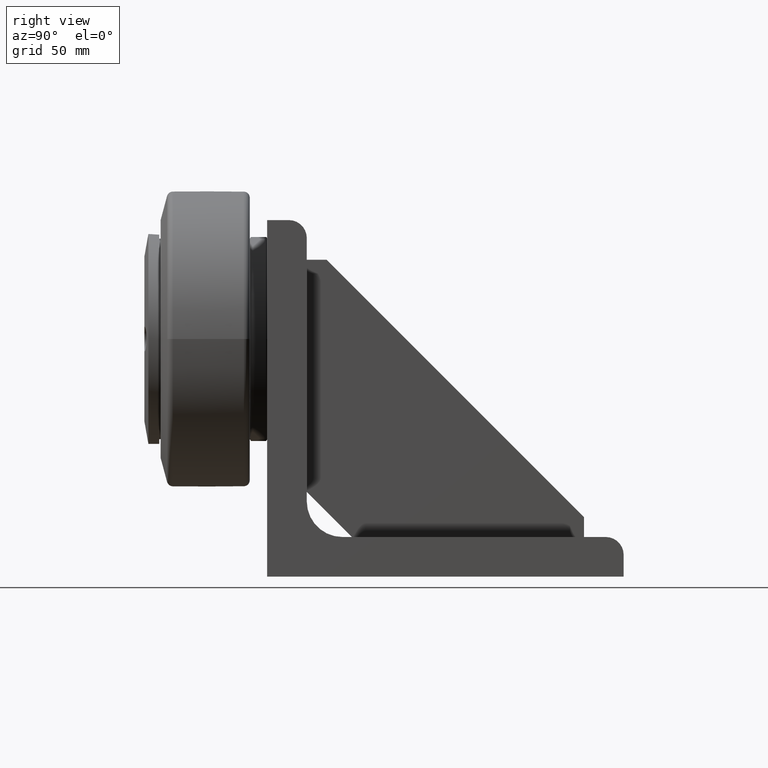
[diagram: clean part render]
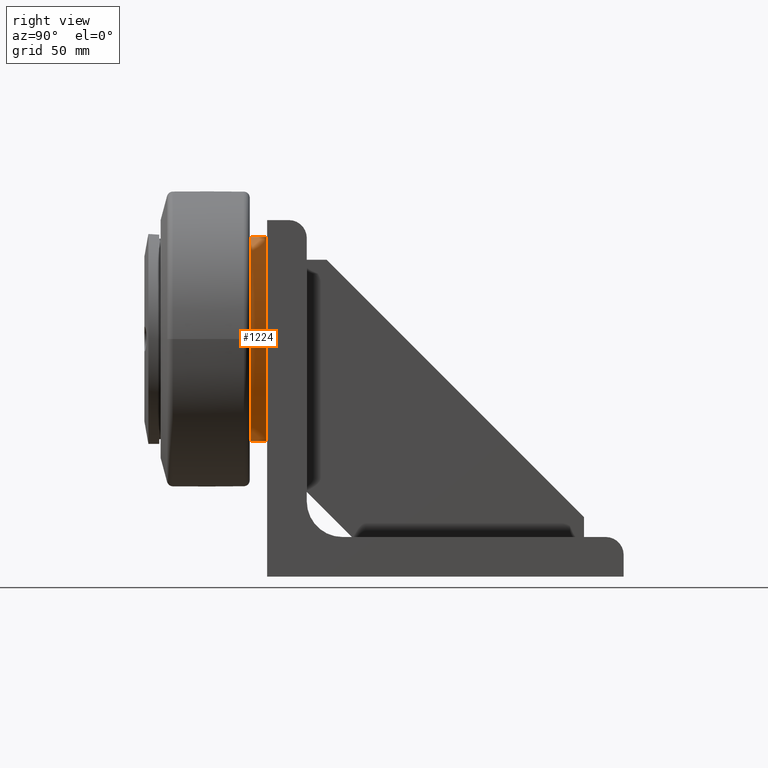
[diagram: same view with one face highlighted and labeled with its STEP entity id]
A machine part, right view. The second image highlights one B-rep face of the part: STEP entity #1224.
In plain terms, the highlighted cylindrical surface (bore or boss wall) has radius 51.5 mm, axis along (0, -1, -0).
Its self-contained STEP definition (entity closure, byte-faithful):
#34=CYLINDRICAL_SURFACE('',#1349,51.5);
#101=CIRCLE('',#1347,51.5);
#102=CIRCLE('',#1348,51.5);
#103=CIRCLE('',#1350,51.5);
#104=CIRCLE('',#1351,51.5);
#152=FACE_OUTER_BOUND('',#221,.T.);
#221=EDGE_LOOP('',(#940,#941,#942,#943,#944,#945));
#304=LINE('',#2001,#415);
#415=VECTOR('',#1576,51.5);
#547=VERTEX_POINT('',#1994);
#548=VERTEX_POINT('',#1996);
#549=VERTEX_POINT('',#2000);
#550=VERTEX_POINT('',#2002);
#692=EDGE_CURVE('',#547,#548,#101,.T.);
#693=EDGE_CURVE('',#548,#547,#102,.T.);
#694=EDGE_CURVE('',#548,#549,#304,.T.);
#695=EDGE_CURVE('',#550,#549,#103,.T.);
#696=EDGE_CURVE('',#549,#550,#104,.T.);
#940=ORIENTED_EDGE('',*,*,#692,.F.);
#941=ORIENTED_EDGE('',*,*,#693,.F.);
#942=ORIENTED_EDGE('',*,*,#694,.T.);
#943=ORIENTED_EDGE('',*,*,#695,.F.);
#944=ORIENTED_EDGE('',*,*,#696,.F.);
#945=ORIENTED_EDGE('',*,*,#694,.F.);
#1224=ADVANCED_FACE('',(#152),#34,.T.);
#1347=AXIS2_PLACEMENT_3D('',#1997,#1570,#1571);
#1348=AXIS2_PLACEMENT_3D('',#1998,#1572,#1573);
#1349=AXIS2_PLACEMENT_3D('',#1999,#1574,#1575);
#1350=AXIS2_PLACEMENT_3D('',#2003,#1577,#1578);
#1351=AXIS2_PLACEMENT_3D('',#2004,#1579,#1580);
#1570=DIRECTION('center_axis',(0.,-1.,-1.83495194347769E-16));
#1571=DIRECTION('ref_axis',(-1.,1.19539491211322E-16,1.83495194347769E-16));
#1572=DIRECTION('center_axis',(0.,-1.,-1.83495194347769E-16));
#1573=DIRECTION('ref_axis',(-1.,1.19539491211322E-16,1.83495194347769E-16));
#1574=DIRECTION('center_axis',(0.,-1.,-1.83495194347769E-16));
#1575=DIRECTION('ref_axis',(1.,-1.19539491211322E-16,-1.83495194347769E-16));
#1576=DIRECTION('',(0.,1.,1.83495194347769E-16));
#1577=DIRECTION('center_axis',(0.,1.,1.83495194347769E-16));
#1578=DIRECTION('ref_axis',(-1.,1.19539491211322E-16,1.83495194347769E-16));
#1579=DIRECTION('center_axis',(0.,1.,1.83495194347769E-16));
#1580=DIRECTION('ref_axis',(-1.,1.19539491211322E-16,1.83495194347769E-16));
#1994=CARTESIAN_POINT('',(151.5,-8.10000000000002,120.));
#1996=CARTESIAN_POINT('',(48.5,-8.10000000000001,120.));
#1997=CARTESIAN_POINT('Origin',(100.,-8.10000000000001,120.));
#1998=CARTESIAN_POINT('Origin',(100.,-8.10000000000001,120.));
#1999=CARTESIAN_POINT('Origin',(100.,-4.30000000000002,120.));
#2000=CARTESIAN_POINT('',(48.5,-0.500000000000004,120.));
#2001=CARTESIAN_POINT('',(48.5,-4.30000000000001,120.));
#2002=CARTESIAN_POINT('',(151.5,-0.50000000000002,120.));
#2003=CARTESIAN_POINT('Origin',(100.,-0.500000000000016,120.));
#2004=CARTESIAN_POINT('Origin',(100.,-0.500000000000016,120.));